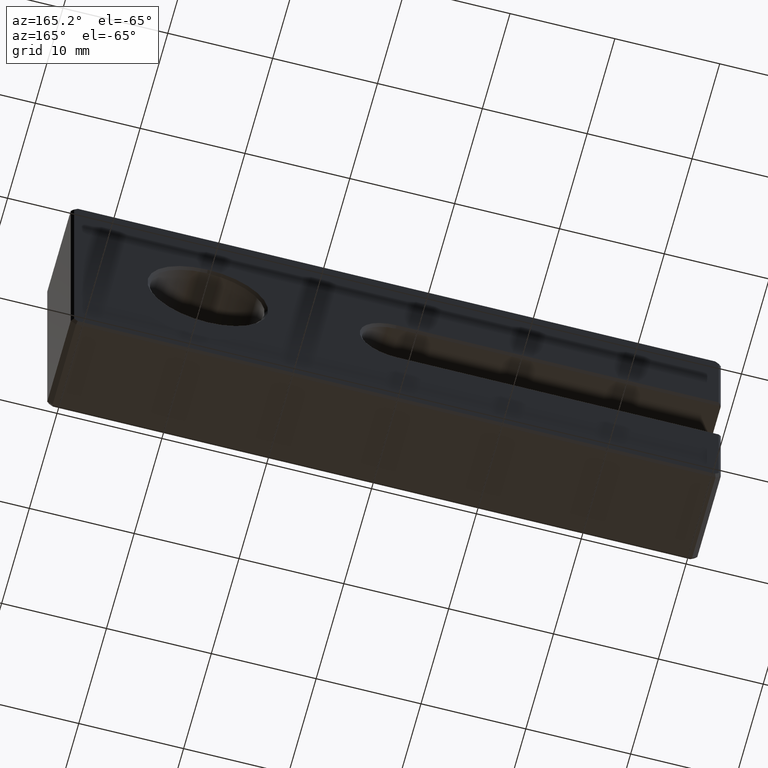
[diagram: clean part render]
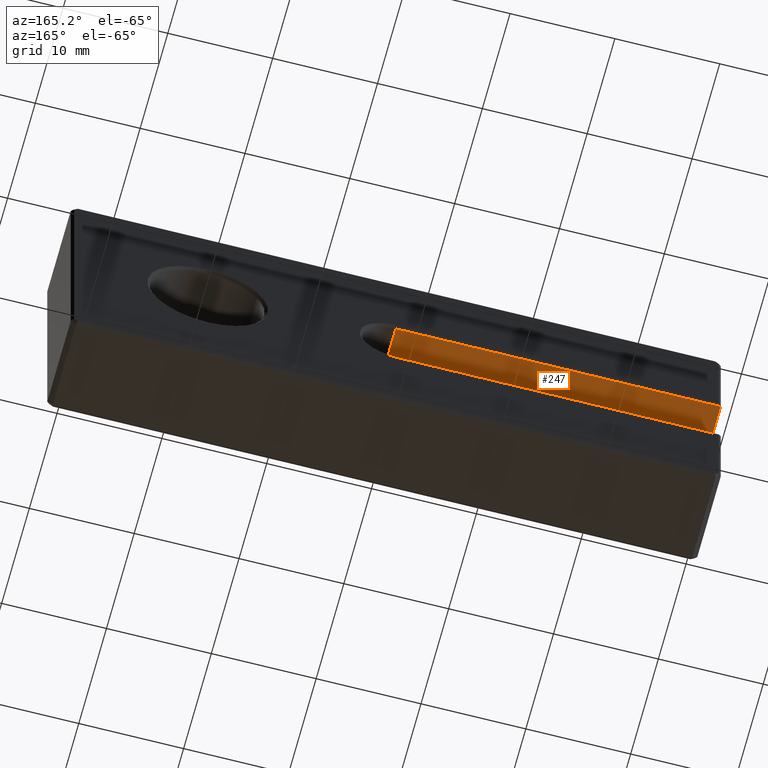
[diagram: same view with one face highlighted and labeled with its STEP entity id]
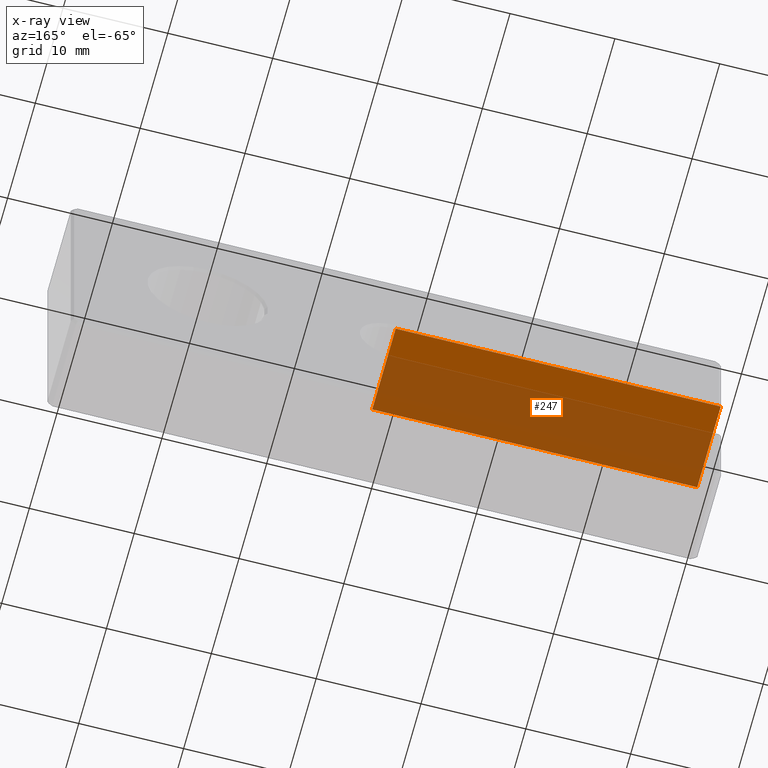
[diagram: x-ray of the same camera — body ghosted, the highlighted face saturated]
A machine part, auxiliary view. The second image highlights one B-rep face of the part: STEP entity #247.
The next image is the same camera in x-ray: the body ghosted, the highlighted face saturated — about 67% of this face is hidden behind the body in this view.
In plain terms, the highlighted planar face has unit normal (0, 0, 1).
Its self-contained STEP definition (entity closure, byte-faithful):
#45 = ORIENTED_EDGE ( 'NONE', *, *, #707, .F. ) ;
#66 = CARTESIAN_POINT ( 'NONE',  ( 0.000000000000000000, 0.2499999999999932832, 3.250000000000000000 ) ) ;
#76 = EDGE_CURVE ( 'NONE', #130, #849, #971, .T. ) ;
#130 = VERTEX_POINT ( 'NONE', #66 ) ;
#143 = CARTESIAN_POINT ( 'NONE',  ( -62.00000000000001421, 0.2499999999999932832, 3.250000000000003109 ) ) ;
#149 = AXIS2_PLACEMENT_3D ( 'NONE', #724, #191, #526 ) ;
#181 = VECTOR ( 'NONE', #356, 1000.000000000000000 ) ;
#191 = DIRECTION ( 'NONE',  ( 5.595882180570342961E-17, 0.000000000000000000, 1.000000000000000000 ) ) ;
#221 = CARTESIAN_POINT ( 'NONE',  ( -31.00000000000000355, 0.2499999999999932832, 3.250000000000004441 ) ) ;
#241 = ORIENTED_EDGE ( 'NONE', *, *, #746, .T. ) ;
#247 = ADVANCED_FACE ( 'NONE', ( #1078 ), #281, .F. ) ;
#263 = CARTESIAN_POINT ( 'NONE',  ( 0.000000000000000000, -12.00000000000000533, 3.250000000000000000 ) ) ;
#281 = PLANE ( 'NONE',  #149 ) ;
#356 = DIRECTION ( 'NONE',  ( -0.000000000000000000, 1.000000000000000000, -0.000000000000000000 ) ) ;
#369 = LINE ( 'NONE', #263, #181 ) ;
#383 = VECTOR ( 'NONE', #505, 1000.000000000000000 ) ;
#495 = ORIENTED_EDGE ( 'NONE', *, *, #1168, .F. ) ;
#505 = DIRECTION ( 'NONE',  ( -1.000000000000000000, 0.000000000000000000, 5.595882180570342961E-17 ) ) ;
#523 = CARTESIAN_POINT ( 'NONE',  ( -31.00000000000000355, 9.000000000000000000, 3.250000000000004441 ) ) ;
#526 = DIRECTION ( 'NONE',  ( 1.000000000000000000, 0.000000000000000000, -5.595882180570342961E-17 ) ) ;
#639 = LINE ( 'NONE', #998, #654 ) ;
#650 = EDGE_LOOP ( 'NONE', ( #45, #744, #495, #241 ) ) ;
#654 = VECTOR ( 'NONE', #809, 1000.000000000000000 ) ;
#686 = VERTEX_POINT ( 'NONE', #1083 ) ;
#707 = EDGE_CURVE ( 'NONE', #130, #686, #369, .T. ) ;
#724 = CARTESIAN_POINT ( 'NONE',  ( -62.00000000000001421, -12.00000000000000533, 3.250000000000003109 ) ) ;
#735 = VECTOR ( 'NONE', #979, 1000.000000000000000 ) ;
#744 = ORIENTED_EDGE ( 'NONE', *, *, #76, .T. ) ;
#746 = EDGE_CURVE ( 'NONE', #997, #686, #639, .T. ) ;
#809 = DIRECTION ( 'NONE',  ( 1.000000000000000000, 0.000000000000000000, -5.595882180570342961E-17 ) ) ;
#849 = VERTEX_POINT ( 'NONE', #221 ) ;
#961 = CARTESIAN_POINT ( 'NONE',  ( -31.00000000000000355, 8.749999999999998224, 3.250000000000004441 ) ) ;
#971 = LINE ( 'NONE', #143, #383 ) ;
#973 = LINE ( 'NONE', #523, #735 ) ;
#979 = DIRECTION ( 'NONE',  ( 0.000000000000000000, -1.000000000000000000, 0.000000000000000000 ) ) ;
#997 = VERTEX_POINT ( 'NONE', #961 ) ;
#998 = CARTESIAN_POINT ( 'NONE',  ( 0.000000000000000000, 8.749999999999998224, 3.250000000000000000 ) ) ;
#1078 = FACE_OUTER_BOUND ( 'NONE', #650, .T. ) ;
#1083 = CARTESIAN_POINT ( 'NONE',  ( 0.000000000000000000, 8.749999999999998224, 3.250000000000000000 ) ) ;
#1168 = EDGE_CURVE ( 'NONE', #997, #849, #973, .T. ) ;